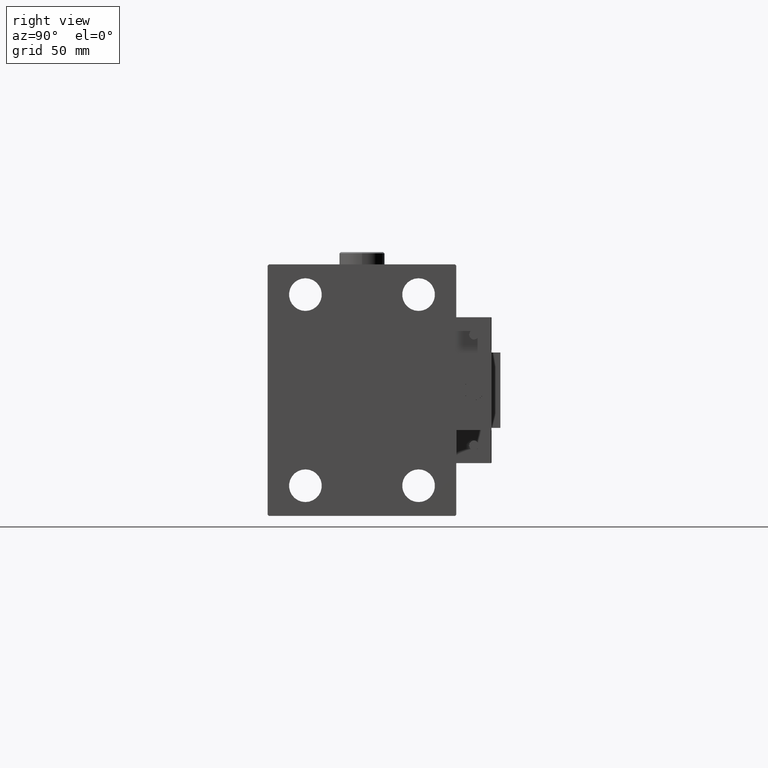
[diagram: clean part render]
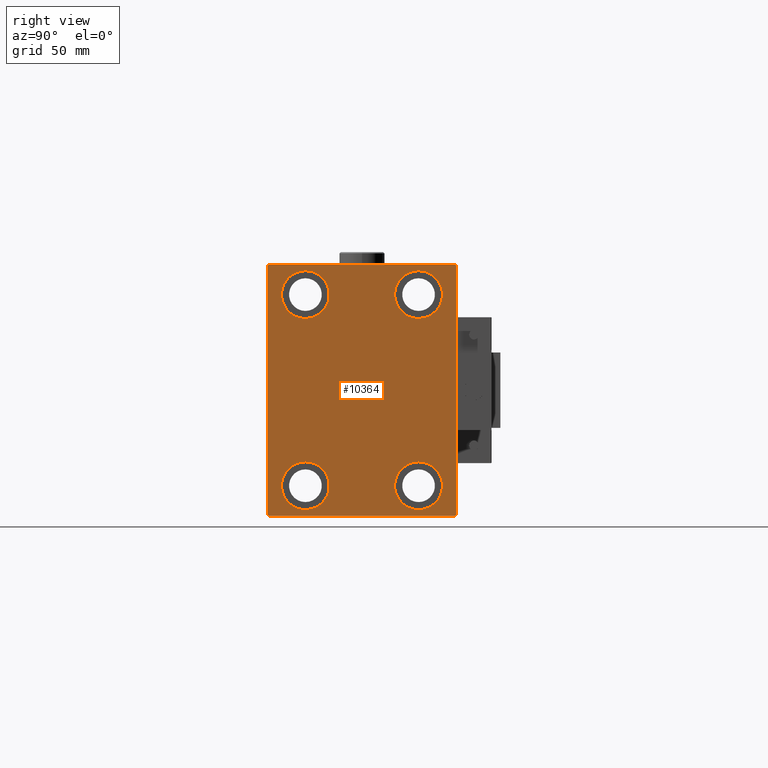
[diagram: same view with one face highlighted and labeled with its STEP entity id]
A machine part, right view. The second image highlights one B-rep face of the part: STEP entity #10364.
In plain terms, the highlighted planar face has unit normal (1, 0, 0).
Its self-contained STEP definition (entity closure, byte-faithful):
#13 = LINE ( 'NONE', #8802, #626 ) ;
#597 = EDGE_CURVE ( 'NONE', #21884, #16230, #16726, .T. ) ;
#626 = VECTOR ( 'NONE', #29217, 1000.000000000000114 ) ;
#750 = VECTOR ( 'NONE', #28212, 1000.000000000000000 ) ;
#1040 = DIRECTION ( 'NONE',  ( 0.000000000000000000, 0.000000000000000000, 1.000000000000000000 ) ) ;
#1113 = DIRECTION ( 'NONE',  ( 0.000000000000000000, 0.000000000000000000, 1.000000000000000000 ) ) ;
#1430 = EDGE_CURVE ( 'NONE', #32289, #38626, #6587, .T. ) ;
#2963 = VERTEX_POINT ( 'NONE', #7917 ) ;
#3100 = ORIENTED_EDGE ( 'NONE', *, *, #15145, .T. ) ;
#4775 = EDGE_CURVE ( 'NONE', #16230, #32289, #42794, .T. ) ;
#5271 = DIRECTION ( 'NONE',  ( 0.000000000000000000, 1.000000000000000000, 9.251858538542970348E-17 ) ) ;
#5286 = CARTESIAN_POINT ( 'NONE',  ( 103.0000000000000000, -22.50000000000000711, -47.49999999999999289 ) ) ;
#5933 = EDGE_LOOP ( 'NONE', ( #47017, #37683 ) ) ;
#6055 = EDGE_CURVE ( 'NONE', #35091, #21884, #30697, .T. ) ;
#6587 = LINE ( 'NONE', #23672, #15901 ) ;
#7120 = EDGE_LOOP ( 'NONE', ( #31126, #47066, #38775, #50372, #52059, #47887, #3100, #45684 ) ) ;
#7802 = ORIENTED_EDGE ( 'NONE', *, *, #32829, .T. ) ;
#7867 = EDGE_CURVE ( 'NONE', #17130, #19887, #15321, .T. ) ;
#7917 = CARTESIAN_POINT ( 'NONE',  ( 103.0000000000000000, -36.99999999999999289, 49.99999999999999289 ) ) ;
#8304 = VERTEX_POINT ( 'NONE', #18402 ) ;
#8360 = CARTESIAN_POINT ( 'NONE',  ( 103.0000000000000000, -22.49999999999999645, 28.49999999999998934 ) ) ;
#8802 = CARTESIAN_POINT ( 'NONE',  ( 103.0000000000000000, -43.49999999999998579, 43.49999999999998579 ) ) ;
#8924 = DIRECTION ( 'NONE',  ( -1.000000000000000000, -0.000000000000000000, -0.000000000000000000 ) ) ;
#9100 = FACE_BOUND ( 'NONE', #23494, .T. ) ;
#9104 = EDGE_CURVE ( 'NONE', #54478, #29386, #24904, .T. ) ;
#9257 = CARTESIAN_POINT ( 'NONE',  ( 103.0000000000000000, -43.50000000000000000, -43.50000000000000000 ) ) ;
#9437 = CARTESIAN_POINT ( 'NONE',  ( 103.0000000000000000, 22.50000000000000355, 47.49999999999999289 ) ) ;
#9737 = CARTESIAN_POINT ( 'NONE',  ( 103.0000000000000000, -37.50000000000000711, 49.99999999999999289 ) ) ;
#10364 = ADVANCED_FACE ( 'NONE', ( #23083, #18684, #9100, #17118, #50488 ), #38349, .T. ) ;
#10825 = AXIS2_PLACEMENT_3D ( 'NONE', #52641, #14864, #31671 ) ;
#11165 = AXIS2_PLACEMENT_3D ( 'NONE', #25918, #38622, #52052 ) ;
#11936 = ORIENTED_EDGE ( 'NONE', *, *, #34340, .T. ) ;
#12193 = VERTEX_POINT ( 'NONE', #37560 ) ;
#12362 = EDGE_LOOP ( 'NONE', ( #21397, #11936 ) ) ;
#12467 = CIRCLE ( 'NONE', #21277, 9.500000000000001776 ) ;
#13268 = CARTESIAN_POINT ( 'NONE',  ( 103.0000000000000000, -37.50000000000000711, -50.00000000000000711 ) ) ;
#13466 = VECTOR ( 'NONE', #26005, 1000.000000000000000 ) ;
#13492 = CARTESIAN_POINT ( 'NONE',  ( 103.0000000000000000, -37.50000000000000711, 49.49999999999997868 ) ) ;
#13822 = CARTESIAN_POINT ( 'NONE',  ( 103.0000000000000000, -37.50000000000000711, -49.49999999999999289 ) ) ;
#13896 = VECTOR ( 'NONE', #17225, 1000.000000000000000 ) ;
#14864 = DIRECTION ( 'NONE',  ( -1.000000000000000000, -0.000000000000000000, -0.000000000000000000 ) ) ;
#15145 = EDGE_CURVE ( 'NONE', #38626, #12193, #41806, .T. ) ;
#15321 = CIRCLE ( 'NONE', #53183, 9.500000000000001776 ) ;
#15698 = VERTEX_POINT ( 'NONE', #45239 ) ;
#15901 = VECTOR ( 'NONE', #22601, 1000.000000000000000 ) ;
#16230 = VERTEX_POINT ( 'NONE', #28730 ) ;
#16367 = VERTEX_POINT ( 'NONE', #5286 ) ;
#16404 = CARTESIAN_POINT ( 'NONE',  ( 103.0000000000000000, 37.50000000000000711, -50.00000000000000000 ) ) ;
#16726 = LINE ( 'NONE', #9257, #37876 ) ;
#17107 = CARTESIAN_POINT ( 'NONE',  ( 103.0000000000000000, 22.49999999999999645, -37.99999999999999289 ) ) ;
#17118 = FACE_BOUND ( 'NONE', #29989, .T. ) ;
#17130 = VERTEX_POINT ( 'NONE', #9437 ) ;
#17225 = DIRECTION ( 'NONE',  ( 0.000000000000000000, -1.387778780781445676E-16, 1.000000000000000000 ) ) ;
#17297 = DIRECTION ( 'NONE',  ( 0.000000000000000000, -1.000000000000000000, -1.850371707708594316E-16 ) ) ;
#17868 = EDGE_CURVE ( 'NONE', #12193, #53975, #19697, .T. ) ;
#18028 = CIRCLE ( 'NONE', #36512, 9.500000000000001776 ) ;
#18137 = DIRECTION ( 'NONE',  ( -1.000000000000000000, -0.000000000000000000, -0.000000000000000000 ) ) ;
#18402 = CARTESIAN_POINT ( 'NONE',  ( 103.0000000000000000, 22.49999999999999645, -28.49999999999998934 ) ) ;
#18684 = FACE_BOUND ( 'NONE', #5933, .T. ) ;
#19638 = VERTEX_POINT ( 'NONE', #51652 ) ;
#19697 = LINE ( 'NONE', #40406, #750 ) ;
#19887 = VERTEX_POINT ( 'NONE', #28147 ) ;
#19995 = ORIENTED_EDGE ( 'NONE', *, *, #24542, .T. ) ;
#21277 = AXIS2_PLACEMENT_3D ( 'NONE', #40317, #53506, #23731 ) ;
#21294 = VECTOR ( 'NONE', #5271, 1000.000000000000000 ) ;
#21397 = ORIENTED_EDGE ( 'NONE', *, *, #37911, .T. ) ;
#21432 = CARTESIAN_POINT ( 'NONE',  ( 103.0000000000000000, 37.49999999999999289, 50.00000000000000711 ) ) ;
#21501 = CARTESIAN_POINT ( 'NONE',  ( 103.0000000000000000, 22.50000000000000355, 37.99999999999999289 ) ) ;
#21707 = CARTESIAN_POINT ( 'NONE',  ( 103.0000000000000000, -22.50000000000000711, -37.99999999999999289 ) ) ;
#21884 = VERTEX_POINT ( 'NONE', #13822 ) ;
#22601 = DIRECTION ( 'NONE',  ( -0.000000000000000000, 0.7071067811865573427, 0.7071067811865378028 ) ) ;
#23018 = EDGE_CURVE ( 'NONE', #53975, #2963, #50666, .T. ) ;
#23083 = FACE_BOUND ( 'NONE', #12362, .T. ) ;
#23395 = DIRECTION ( 'NONE',  ( -1.000000000000000000, -0.000000000000000000, -0.000000000000000000 ) ) ;
#23494 = EDGE_LOOP ( 'NONE', ( #41967, #35456 ) ) ;
#23672 = CARTESIAN_POINT ( 'NONE',  ( 103.0000000000000000, 43.49999999999950262, -43.50000000000070344 ) ) ;
#23731 = DIRECTION ( 'NONE',  ( 0.000000000000000000, 0.000000000000000000, 1.000000000000000000 ) ) ;
#24542 = EDGE_CURVE ( 'NONE', #16367, #15698, #12467, .T. ) ;
#24904 = CIRCLE ( 'NONE', #10825, 9.500000000000001776 ) ;
#25918 = CARTESIAN_POINT ( 'NONE',  ( 103.0000000000000000, 0.000000000000000000, 0.000000000000000000 ) ) ;
#26005 = DIRECTION ( 'NONE',  ( 0.000000000000000000, 0.000000000000000000, -1.000000000000000000 ) ) ;
#27897 = DIRECTION ( 'NONE',  ( -1.000000000000000000, -0.000000000000000000, -0.000000000000000000 ) ) ;
#28147 = CARTESIAN_POINT ( 'NONE',  ( 103.0000000000000000, 22.50000000000000355, 28.49999999999998934 ) ) ;
#28212 = DIRECTION ( 'NONE',  ( -0.000000000000000000, -0.7071067811865524577, 0.7071067811865426878 ) ) ;
#28730 = CARTESIAN_POINT ( 'NONE',  ( 103.0000000000000000, -36.99999999999999289, -50.00000000000000711 ) ) ;
#29217 = DIRECTION ( 'NONE',  ( 0.000000000000000000, -0.7071067811865474617, -0.7071067811865474617 ) ) ;
#29386 = VERTEX_POINT ( 'NONE', #42177 ) ;
#29989 = EDGE_LOOP ( 'NONE', ( #19995, #7802 ) ) ;
#30273 = CARTESIAN_POINT ( 'NONE',  ( 103.0000000000000000, 36.99999999999997868, 50.00000000000000711 ) ) ;
#30697 = LINE ( 'NONE', #9737, #13466 ) ;
#31126 = ORIENTED_EDGE ( 'NONE', *, *, #23018, .T. ) ;
#31127 = AXIS2_PLACEMENT_3D ( 'NONE', #39704, #23395, #31946 ) ;
#31671 = DIRECTION ( 'NONE',  ( 0.000000000000000000, 0.000000000000000000, 1.000000000000000000 ) ) ;
#31946 = DIRECTION ( 'NONE',  ( 0.000000000000000000, 0.000000000000000000, 1.000000000000000000 ) ) ;
#31978 = CIRCLE ( 'NONE', #31127, 9.500000000000001776 ) ;
#32053 = CARTESIAN_POINT ( 'NONE',  ( 103.0000000000000000, -22.49999999999999645, 37.99999999999999289 ) ) ;
#32289 = VERTEX_POINT ( 'NONE', #40858 ) ;
#32505 = EDGE_CURVE ( 'NONE', #19887, #17130, #31978, .T. ) ;
#32829 = EDGE_CURVE ( 'NONE', #15698, #16367, #48769, .T. ) ;
#33635 = DIRECTION ( 'NONE',  ( 0.000000000000000000, 0.000000000000000000, 1.000000000000000000 ) ) ;
#33639 = DIRECTION ( 'NONE',  ( -1.000000000000000000, -0.000000000000000000, -0.000000000000000000 ) ) ;
#34005 = CIRCLE ( 'NONE', #51656, 9.500000000000001776 ) ;
#34340 = EDGE_CURVE ( 'NONE', #8304, #19638, #18028, .T. ) ;
#35091 = VERTEX_POINT ( 'NONE', #13492 ) ;
#35456 = ORIENTED_EDGE ( 'NONE', *, *, #7867, .T. ) ;
#36512 = AXIS2_PLACEMENT_3D ( 'NONE', #45636, #8924, #49779 ) ;
#37560 = CARTESIAN_POINT ( 'NONE',  ( 103.0000000000000000, 37.49999999999999289, 49.50000000000000000 ) ) ;
#37683 = ORIENTED_EDGE ( 'NONE', *, *, #49055, .T. ) ;
#37876 = VECTOR ( 'NONE', #51470, 1000.000000000000114 ) ;
#37911 = EDGE_CURVE ( 'NONE', #19638, #8304, #34005, .T. ) ;
#38054 = DIRECTION ( 'NONE',  ( -1.000000000000000000, -0.000000000000000000, -0.000000000000000000 ) ) ;
#38213 = AXIS2_PLACEMENT_3D ( 'NONE', #21707, #18137, #1040 ) ;
#38349 = PLANE ( 'NONE',  #11165 ) ;
#38622 = DIRECTION ( 'NONE',  ( 1.000000000000000000, 0.000000000000000000, 0.000000000000000000 ) ) ;
#38626 = VERTEX_POINT ( 'NONE', #46613 ) ;
#38775 = ORIENTED_EDGE ( 'NONE', *, *, #6055, .T. ) ;
#39704 = CARTESIAN_POINT ( 'NONE',  ( 103.0000000000000000, 22.50000000000000355, 37.99999999999999289 ) ) ;
#40317 = CARTESIAN_POINT ( 'NONE',  ( 103.0000000000000000, -22.50000000000000711, -37.99999999999999289 ) ) ;
#40353 = DIRECTION ( 'NONE',  ( 0.000000000000000000, 0.000000000000000000, 1.000000000000000000 ) ) ;
#40406 = CARTESIAN_POINT ( 'NONE',  ( 103.0000000000000000, 43.49999999999972999, 43.50000000000033396 ) ) ;
#40858 = CARTESIAN_POINT ( 'NONE',  ( 103.0000000000000000, 37.00000000000000711, -50.00000000000000000 ) ) ;
#41376 = AXIS2_PLACEMENT_3D ( 'NONE', #32053, #27897, #40353 ) ;
#41806 = LINE ( 'NONE', #16404, #13896 ) ;
#41967 = ORIENTED_EDGE ( 'NONE', *, *, #32505, .T. ) ;
#42177 = CARTESIAN_POINT ( 'NONE',  ( 103.0000000000000000, -22.49999999999999645, 47.49999999999999289 ) ) ;
#42294 = EDGE_CURVE ( 'NONE', #2963, #35091, #13, .T. ) ;
#42794 = LINE ( 'NONE', #13268, #21294 ) ;
#45239 = CARTESIAN_POINT ( 'NONE',  ( 103.0000000000000000, -22.50000000000000711, -28.49999999999998934 ) ) ;
#45636 = CARTESIAN_POINT ( 'NONE',  ( 103.0000000000000000, 22.49999999999999645, -37.99999999999999289 ) ) ;
#45684 = ORIENTED_EDGE ( 'NONE', *, *, #17868, .T. ) ;
#45862 = VECTOR ( 'NONE', #17297, 1000.000000000000000 ) ;
#46613 = CARTESIAN_POINT ( 'NONE',  ( 103.0000000000000000, 37.50000000000000711, -49.50000000000001421 ) ) ;
#47017 = ORIENTED_EDGE ( 'NONE', *, *, #9104, .T. ) ;
#47066 = ORIENTED_EDGE ( 'NONE', *, *, #42294, .T. ) ;
#47887 = ORIENTED_EDGE ( 'NONE', *, *, #1430, .T. ) ;
#48769 = CIRCLE ( 'NONE', #38213, 9.500000000000001776 ) ;
#49055 = EDGE_CURVE ( 'NONE', #29386, #54478, #50185, .T. ) ;
#49779 = DIRECTION ( 'NONE',  ( 0.000000000000000000, 0.000000000000000000, 1.000000000000000000 ) ) ;
#50185 = CIRCLE ( 'NONE', #41376, 9.500000000000001776 ) ;
#50372 = ORIENTED_EDGE ( 'NONE', *, *, #597, .T. ) ;
#50488 = FACE_OUTER_BOUND ( 'NONE', #7120, .T. ) ;
#50666 = LINE ( 'NONE', #21432, #45862 ) ;
#51470 = DIRECTION ( 'NONE',  ( -0.000000000000000000, 0.7071067811865474617, -0.7071067811865474617 ) ) ;
#51652 = CARTESIAN_POINT ( 'NONE',  ( 103.0000000000000000, 22.49999999999999645, -47.49999999999999289 ) ) ;
#51656 = AXIS2_PLACEMENT_3D ( 'NONE', #17107, #33639, #1113 ) ;
#52052 = DIRECTION ( 'NONE',  ( 0.000000000000000000, 0.000000000000000000, -1.000000000000000000 ) ) ;
#52059 = ORIENTED_EDGE ( 'NONE', *, *, #4775, .T. ) ;
#52641 = CARTESIAN_POINT ( 'NONE',  ( 103.0000000000000000, -22.49999999999999645, 37.99999999999999289 ) ) ;
#53183 = AXIS2_PLACEMENT_3D ( 'NONE', #21501, #38054, #33635 ) ;
#53506 = DIRECTION ( 'NONE',  ( -1.000000000000000000, -0.000000000000000000, -0.000000000000000000 ) ) ;
#53975 = VERTEX_POINT ( 'NONE', #30273 ) ;
#54478 = VERTEX_POINT ( 'NONE', #8360 ) ;